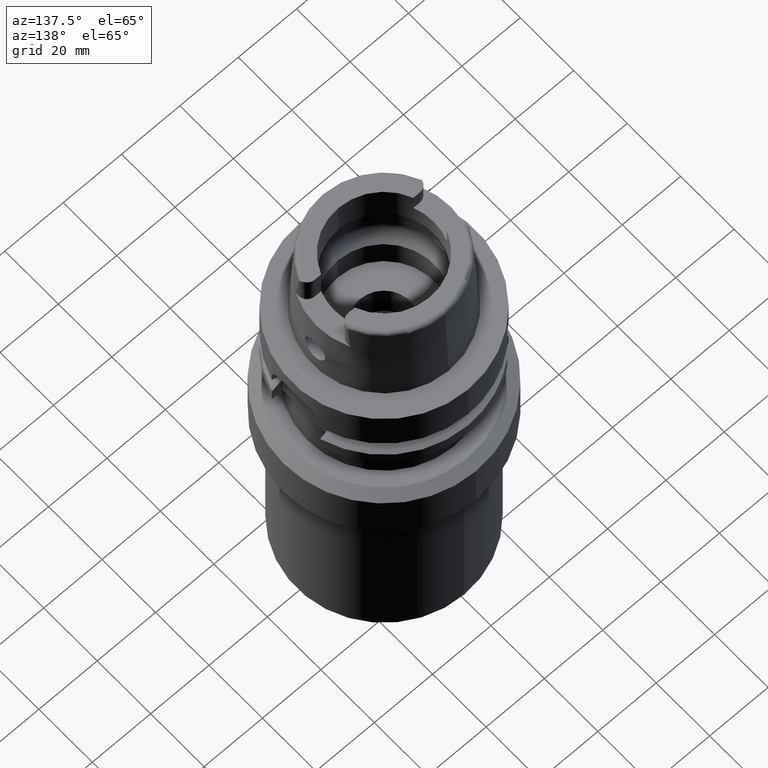
[diagram: clean part render]
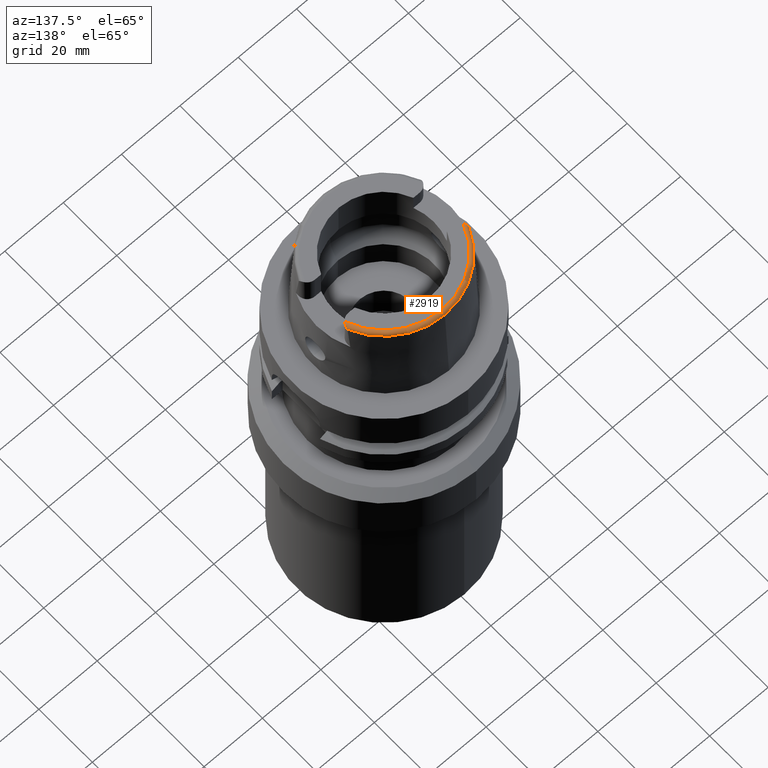
[diagram: same view with one face highlighted and labeled with its STEP entity id]
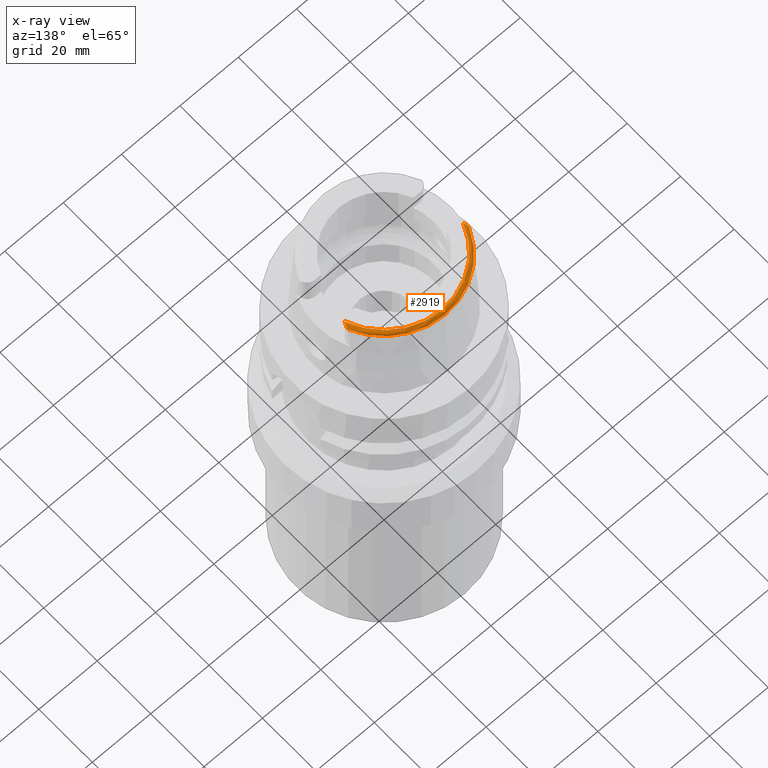
[diagram: x-ray of the same camera — body ghosted, the highlighted face saturated]
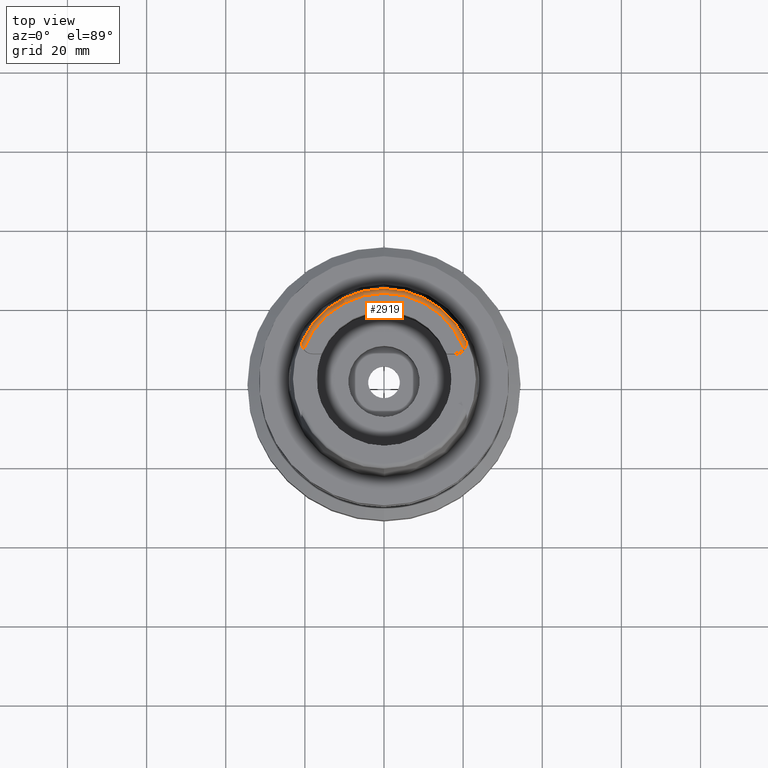
[diagram: same view with one face highlighted and labeled with its STEP entity id]
A machine part, auxiliary view. The second image highlights one B-rep face of the part: STEP entity #2919.
The next image is the same camera in x-ray: the body ghosted, the highlighted face saturated — about 0% of this face is hidden behind the body in this view.
A second angle (top view) of the same face is appended — the face is thin or edge-on in the first view.
In plain terms, the highlighted toroidal blend (fillet) surface has major radius 21.5735 mm and minor (blend) radius 1.2 mm.
Its self-contained STEP definition (entity closure, byte-faithful):
#187=CARTESIAN_POINT('',(-2.086974110890E1,9.111383545109E0,3.085992740054E1));
#414=CARTESIAN_POINT('',(0.E0,0.E0,3.2E1));
#415=DIRECTION('',(0.E0,0.E0,-1.E0));
#416=DIRECTION('',(-9.395199128801E-1,3.424942821446E-1,0.E0));
#417=AXIS2_PLACEMENT_3D('',#414,#415,#416);
#467=CARTESIAN_POINT('',(-2.026871835884E1,7.388795116670E0,3.2E1));
#468=CARTESIAN_POINT('',(-2.032026365021E1,7.455486506672E0,3.2E1));
#469=CARTESIAN_POINT('',(-2.042031176318E1,7.596612682976E0,3.198772092930E1));
#470=CARTESIAN_POINT('',(-2.056146997335E1,7.842758342591E0,3.192681724934E1));
#471=CARTESIAN_POINT('',(-2.067291819202E1,8.092340179382E0,3.183028220182E1));
#472=CARTESIAN_POINT('',(-2.075086122646E1,8.320292972679E0,3.171532670596E1));
#473=CARTESIAN_POINT('',(-2.080182740644E1,8.517829941586E0,3.159409039671E1));
#474=CARTESIAN_POINT('',(-2.083391806824E1,8.686673114617E0,3.147072123595E1));
#475=CARTESIAN_POINT('',(-2.085290234597E1,8.827953642341E0,3.134721742317E1));
#476=CARTESIAN_POINT('',(-2.086318169044E1,8.943496387234E0,3.122248339507E1));
#477=CARTESIAN_POINT('',(-2.086781985510E1,9.030529016149E0,3.109908090339E1));
#478=CARTESIAN_POINT('',(-2.086944852021E1,9.088851331409E0,3.097528470926E1));
#479=CARTESIAN_POINT('',(-2.086967956532E1,9.106794073629E0,3.089778040300E1));
#480=CARTESIAN_POINT('',(-2.086974110890E1,9.111383545109E0,3.085992740054E1));
#485=CARTESIAN_POINT('',(0.E0,0.E0,3.085992712280E1));
#486=DIRECTION('',(0.E0,0.E0,-1.E0));
#487=DIRECTION('',(-9.164655183266E-1,4.001136759952E-1,0.E0));
#488=AXIS2_PLACEMENT_3D('',#485,#486,#487);
#493=CARTESIAN_POINT('',(0.E0,0.E0,3.085992712280E1));
#494=DIRECTION('',(0.E0,0.E0,-1.E0));
#495=DIRECTION('',(0.E0,1.E0,0.E0));
#496=AXIS2_PLACEMENT_3D('',#493,#494,#495);
#501=CARTESIAN_POINT('',(2.086974104061E1,9.111384044247E0,3.085992600402E1));
#502=CARTESIAN_POINT('',(2.086967953659E1,9.106797404438E0,3.089775562232E1));
#503=CARTESIAN_POINT('',(2.086944899815E1,9.088873241183E0,3.097522494118E1));
#504=CARTESIAN_POINT('',(2.086782034791E1,9.030539404586E0,3.109906710135E1));
#505=CARTESIAN_POINT('',(2.086318284894E1,8.943516468319E0,3.122245659318E1));
#506=CARTESIAN_POINT('',(2.085290596995E1,8.827981911095E0,3.134719255663E1));
#507=CARTESIAN_POINT('',(2.083391457368E1,8.686646584066E0,3.147074450149E1));
#508=CARTESIAN_POINT('',(2.080181527422E1,8.517771235463E0,3.159413093446E1));
#509=CARTESIAN_POINT('',(2.075083250762E1,8.320198306991E0,3.171537892302E1));
#510=CARTESIAN_POINT('',(2.067289938978E1,8.092296121161E0,3.183030009578E1));
#511=CARTESIAN_POINT('',(2.056145796444E1,7.842736766523E0,3.192682302612E1));
#512=CARTESIAN_POINT('',(2.042031724324E1,7.596622529584E0,3.198771826854E1));
#513=CARTESIAN_POINT('',(2.032026760047E1,7.455491617682E0,3.2E1));
#514=CARTESIAN_POINT('',(2.026871835884E1,7.388795116670E0,3.2E1));
#2311=CARTESIAN_POINT('',(-2.026871835884E1,7.388795116670E0,3.2E1));
#2312=VERTEX_POINT('',#2311);
#2313=CARTESIAN_POINT('',(2.026871835884E1,7.388795116669E0,3.2E1));
#2314=VERTEX_POINT('',#2313);
#2327=VERTEX_POINT('',#187);
#2337=CARTESIAN_POINT('',(2.481821280840E-3,2.277198688789E1,3.085992712280E1));
#2338=VERTEX_POINT('',#2337);
#2341=CARTESIAN_POINT('',(2.086974092012E1,9.111384045666E0,3.085992712280E1));
#2342=VERTEX_POINT('',#2341);
#2905=CARTESIAN_POINT('',(0.E0,0.E0,3.08E1));
#2906=DIRECTION('',(0.E0,0.E0,1.E0));
#2907=DIRECTION('',(-6.539142454763E-4,-9.999997861981E-1,0.E0));
#2908=AXIS2_PLACEMENT_3D('',#2905,#2906,#2907);
#2909=TOROIDAL_SURFACE('',#2908,2.157348458609E1,1.2E0);
#2910=ORIENTED_EDGE('',*,*,#2895,.T.);
#2911=ORIENTED_EDGE('',*,*,#2729,.T.);
#2913=ORIENTED_EDGE('',*,*,#2912,.T.);
#2915=ORIENTED_EDGE('',*,*,#2914,.T.);
#2916=ORIENTED_EDGE('',*,*,#2866,.F.);
#2917=EDGE_LOOP('',(#2910,#2911,#2913,#2915,#2916));
#2918=FACE_OUTER_BOUND('',#2917,.F.);
#418=CIRCLE('',#417,2.157348458609E1);
#481=B_SPLINE_CURVE_WITH_KNOTS('',3,(#467,#468,#469,#470,#471,#472,#473,#474,
#475,#476,#477,#478,#479,#480),.UNSPECIFIED.,.F.,.F.,(4,1,1,1,1,1,1,1,1,1,1,4),(
0.E0,9.090909090909E-2,1.818181818182E-1,2.727272727273E-1,3.636363636364E-1,
4.545454545455E-1,5.454545454545E-1,6.363636363636E-1,7.272727272727E-1,
8.181818181818E-1,9.090909090909E-1,1.E0),.UNSPECIFIED.);
#489=CIRCLE('',#488,2.277198729362E1);
#497=CIRCLE('',#496,2.277198729362E1);
#515=B_SPLINE_CURVE_WITH_KNOTS('',3,(#501,#502,#503,#504,#505,#506,#507,#508,
#509,#510,#511,#512,#513,#514),.UNSPECIFIED.,.F.,.F.,(4,1,1,1,1,1,1,1,1,1,1,4),(
0.E0,9.090909090909E-2,1.818181818182E-1,2.727272727273E-1,3.636363636364E-1,
4.545454545455E-1,5.454545454545E-1,6.363636363636E-1,7.272727272727E-1,
8.181818181818E-1,9.090909090909E-1,1.E0),.UNSPECIFIED.);
#2729=EDGE_CURVE('',#2327,#2338,#489,.T.);
#2866=EDGE_CURVE('',#2312,#2314,#418,.T.);
#2895=EDGE_CURVE('',#2312,#2327,#481,.T.);
#2912=EDGE_CURVE('',#2338,#2342,#497,.T.);
#2914=EDGE_CURVE('',#2342,#2314,#515,.T.);
#2919=ADVANCED_FACE('',(#2918),#2909,.T.);